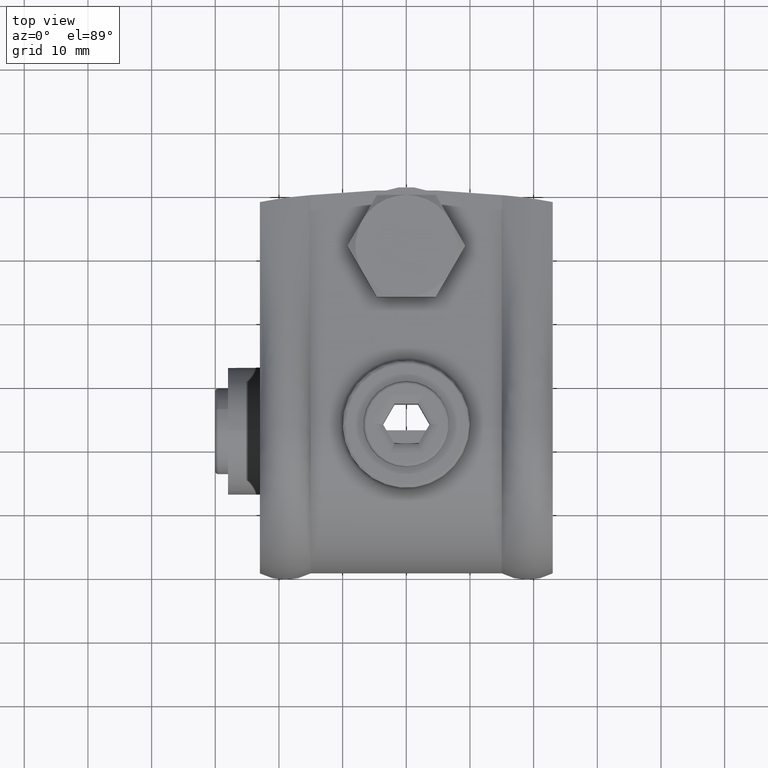
[diagram: clean part render]
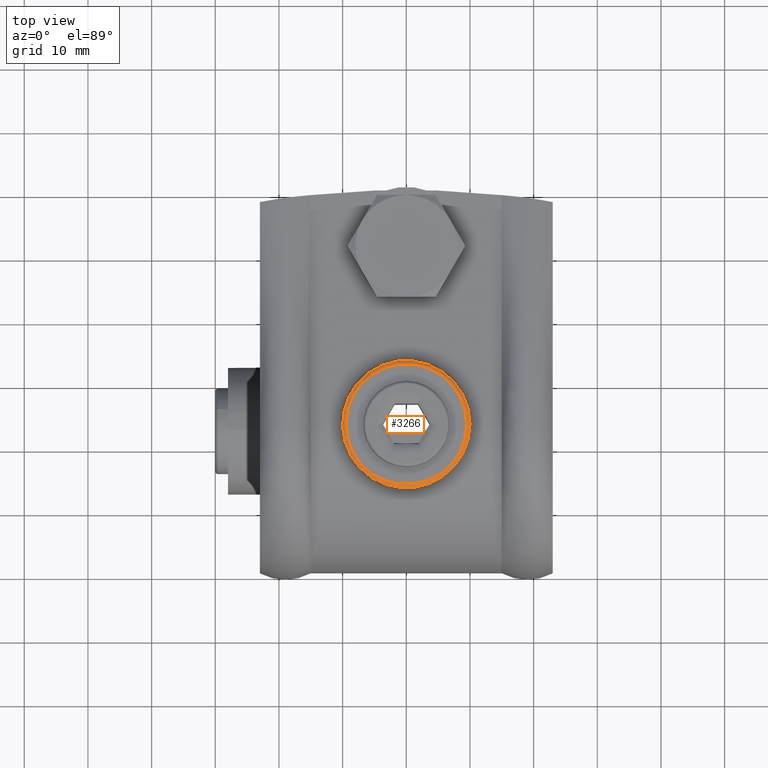
[diagram: same view with one face highlighted and labeled with its STEP entity id]
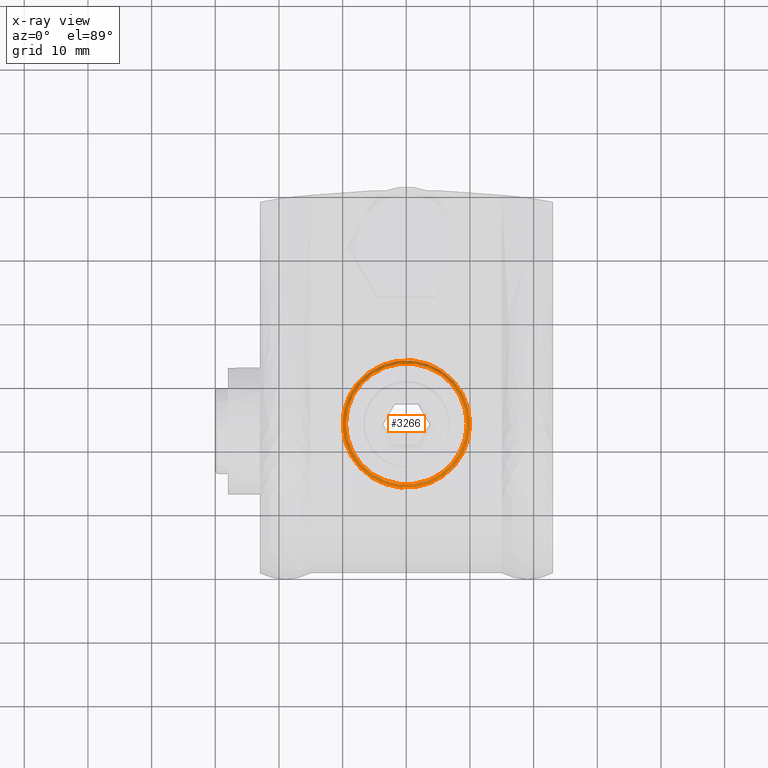
[diagram: x-ray of the same camera — body ghosted, the highlighted face saturated]
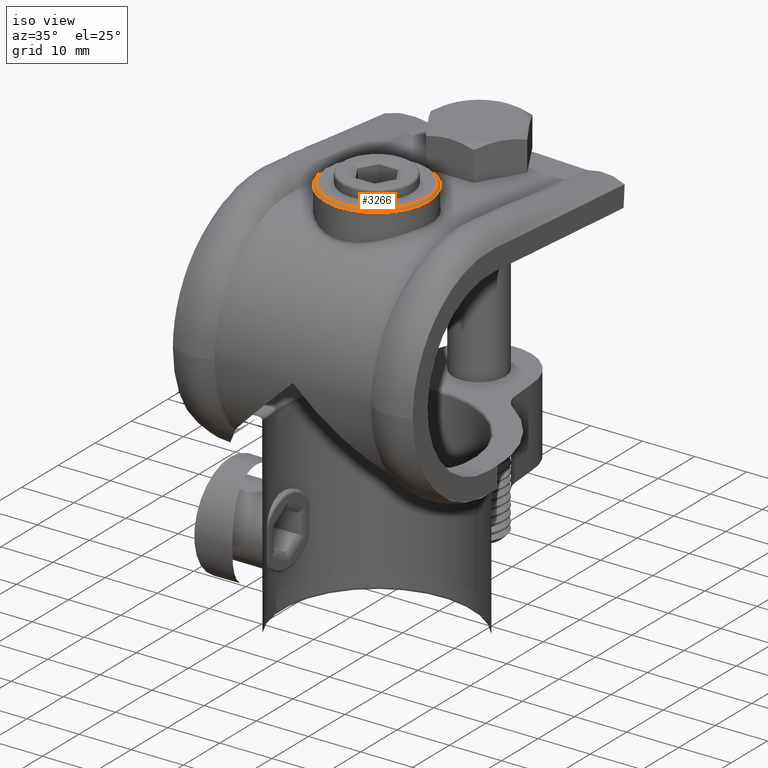
[diagram: same view with one face highlighted and labeled with its STEP entity id]
A machine part, top view. The second image highlights one B-rep face of the part: STEP entity #3266.
The next image is the same camera in x-ray: the body ghosted, the highlighted face saturated — about 0% of this face is hidden behind the body in this view.
A second angle (iso view) of the same face is appended — the face is thin or edge-on in the first view.
In plain terms, the highlighted toroidal blend (fillet) surface has major radius 9.5 mm and minor (blend) radius 0.5 mm.
Its self-contained STEP definition (entity closure, byte-faithful):
#58 = DIRECTION ( 'NONE',  ( 1.000000000000000000, 0.000000000000000000, 0.000000000000000000 ) ) ;
#438 = DIRECTION ( 'NONE',  ( 0.000000000000000000, 0.000000000000000000, 1.000000000000000000 ) ) ;
#528 = EDGE_LOOP ( 'NONE', ( #5525 ) ) ;
#648 = EDGE_LOOP ( 'NONE', ( #1588 ) ) ;
#781 = EDGE_CURVE ( 'NONE', #4870, #4870, #5817, .T. ) ;
#892 = DIRECTION ( 'NONE',  ( 1.000000000000000000, 0.000000000000000000, 0.000000000000000000 ) ) ;
#1028 = CARTESIAN_POINT ( 'NONE',  ( 10.00000000000000178, 23.00000000000000000, 25.44884505545632436 ) ) ;
#1072 = CIRCLE ( 'NONE', #3906, 10.00000000000000178 ) ;
#1366 = CARTESIAN_POINT ( 'NONE',  ( 9.500000000000001776, 23.00000000000000000, 25.94884505545632436 ) ) ;
#1476 = CARTESIAN_POINT ( 'NONE',  ( 0.000000000000000000, 23.00000000000000000, 25.44884505545632436 ) ) ;
#1588 = ORIENTED_EDGE ( 'NONE', *, *, #3349, .F. ) ;
#1834 = CARTESIAN_POINT ( 'NONE',  ( 0.000000000000000000, 23.00000000000000000, 25.44884505545632436 ) ) ;
#2210 = AXIS2_PLACEMENT_3D ( 'NONE', #1834, #438, #4064 ) ;
#2339 = AXIS2_PLACEMENT_3D ( 'NONE', #5369, #3604, #892 ) ;
#2488 = FACE_OUTER_BOUND ( 'NONE', #528, .T. ) ;
#3266 = ADVANCED_FACE ( 'NONE', ( #4472, #2488 ), #5646, .T. ) ;
#3283 = DIRECTION ( 'NONE',  ( -0.000000000000000000, -0.000000000000000000, -1.000000000000000000 ) ) ;
#3349 = EDGE_CURVE ( 'NONE', #3740, #3740, #1072, .T. ) ;
#3604 = DIRECTION ( 'NONE',  ( 0.000000000000000000, 0.000000000000000000, 1.000000000000000000 ) ) ;
#3740 = VERTEX_POINT ( 'NONE', #1028 ) ;
#3906 = AXIS2_PLACEMENT_3D ( 'NONE', #1476, #3283, #58 ) ;
#4064 = DIRECTION ( 'NONE',  ( 1.000000000000000000, 0.000000000000000000, 0.000000000000000000 ) ) ;
#4472 = FACE_OUTER_BOUND ( 'NONE', #648, .T. ) ;
#4870 = VERTEX_POINT ( 'NONE', #1366 ) ;
#5369 = CARTESIAN_POINT ( 'NONE',  ( 0.000000000000000000, 23.00000000000000000, 25.94884505545632436 ) ) ;
#5525 = ORIENTED_EDGE ( 'NONE', *, *, #781, .F. ) ;
#5646 = TOROIDAL_SURFACE ( 'NONE', #2210, 9.500000000000001776, 0.5000000000000000000 ) ;
#5817 = CIRCLE ( 'NONE', #2339, 9.500000000000001776 ) ;